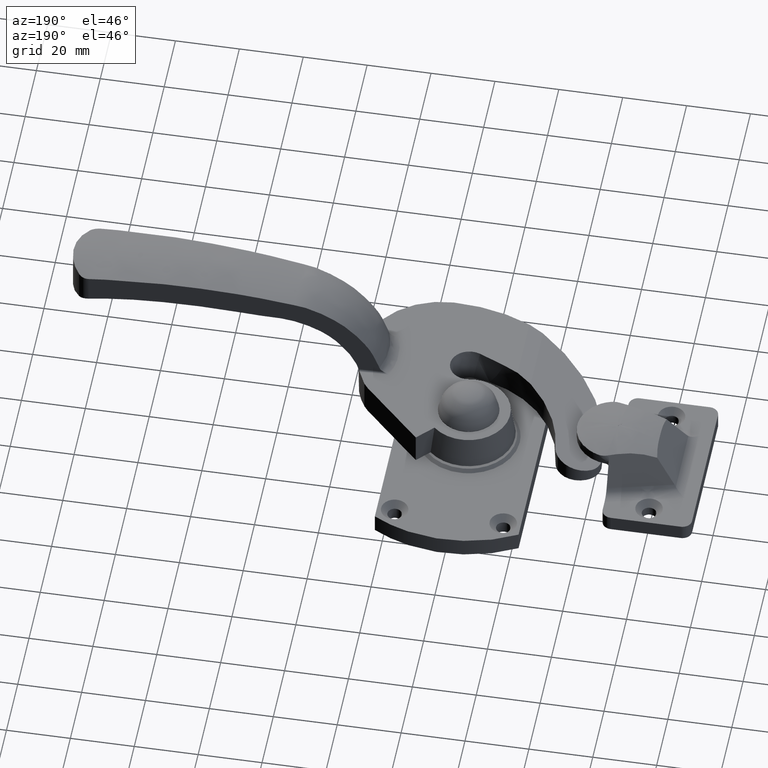
[diagram: clean part render]
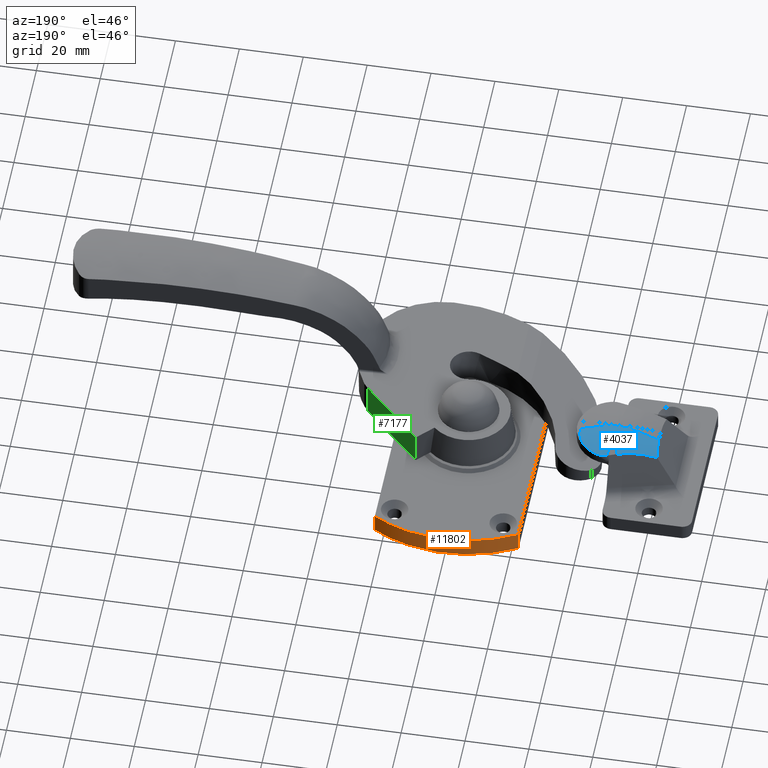
[diagram: same view with three faces highlighted in distinct colors, each labeled with its STEP entity id]
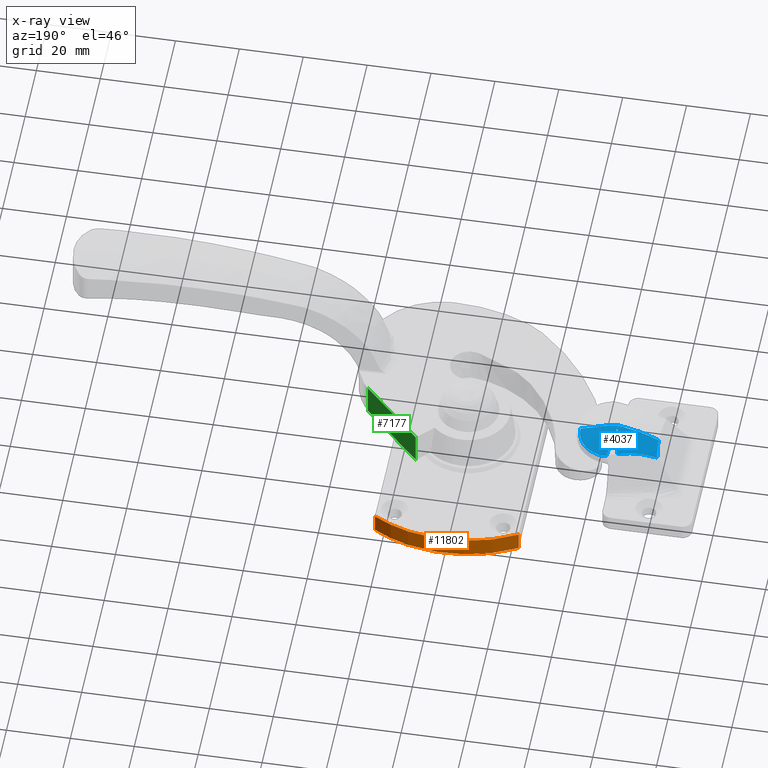
[diagram: x-ray of the same camera — body ghosted, the three highlighted faces saturated]
A machine part, auxiliary view with three faces highlighted in distinct colors.
The next image is the same camera in x-ray (body ghosted, the three faces saturated) — at least one of them is partly hidden behind the body in this view.
Their STEP definitions:

[orange] entity #11802 — the highlighted face is a freeform B-spline surface patch.
#11648=CARTESIAN_POINT('',(22.500000000000000,-38.971142999999998,0.0));
#11649=VERTEX_POINT('',#11648);
#11662=CARTESIAN_POINT('',(22.500000000000000,-38.971142999999998,6.0));
#11663=VERTEX_POINT('',#11662);
#11669=CARTESIAN_POINT('',(22.500000000000000,-38.971142999999998,6.0));
#11670=CARTESIAN_POINT('',(22.500000000000000,-38.971142999999998,0.0));
#11671=QUASI_UNIFORM_CURVE('',1,(#11669,#11670),.UNSPECIFIED.,.F.,.U.);
#11672=EDGE_CURVE('',#11663,#11649,#11671,.T.);
#11735=CARTESIAN_POINT('',(-22.500000000000000,-38.971142999999998,0.0));
#11736=VERTEX_POINT('',#11735);
#11742=CARTESIAN_POINT('',(-22.500000000000000,-38.971142999999998,6.0));
#11743=VERTEX_POINT('',#11742);
#11744=CARTESIAN_POINT('',(-22.500000000000000,-38.971142999999998,6.0));
#11745=CARTESIAN_POINT('',(-22.500000000000000,-38.971142999999998,0.0));
#11746=QUASI_UNIFORM_CURVE('',1,(#11744,#11745),.UNSPECIFIED.,.F.,.U.);
#11747=EDGE_CURVE('',#11743,#11736,#11746,.T.);
#11758=CARTESIAN_POINT('',(-24.178482303792428,-37.952615107330821,6.150000000000001));
#11759=CARTESIAN_POINT('',(-24.178482303792428,-37.952615107330821,-0.153750000000001));
#11760=CARTESIAN_POINT('',(0.166187748543544,-53.461880342083390,6.150000000000001));
#11761=CARTESIAN_POINT('',(0.166187748543544,-53.461880342083390,-0.153750000000000));
#11762=CARTESIAN_POINT('',(24.413966286184500,-37.801564123420150,6.150000000000001));
#11763=CARTESIAN_POINT('',(24.413966286184500,-37.801564123420150,-0.153750000000001));
#11771=(BOUNDED_SURFACE()B_SPLINE_SURFACE(1,2,((#11758,#11760,#11762),(#11759,#11761,#11763)),.UNSPECIFIED.,.F.,.F.,.U.)B_SPLINE_SURFACE_WITH_KNOTS((2,2),(3,3),(0.0,6.303750000000002),(0.0,52.768634472815151),.UNSPECIFIED.)GEOMETRIC_REPRESENTATION_ITEM()RATIONAL_B_SPLINE_SURFACE(((1.0,0.838184844521303,0.991624471848472),(1.0,0.838184844521303,0.991624471848472)))REPRESENTATION_ITEM('')SURFACE());
#11772=CARTESIAN_POINT('',(22.500000000000000,-38.971142999999998,0.0));
#11773=CARTESIAN_POINT('',(6.938894E-015,-51.961524283832887,0.0));
#11774=CARTESIAN_POINT('',(-22.500000000000000,-38.971142999999998,0.0));
#11782=(BOUNDED_CURVE()B_SPLINE_CURVE(2,(#11772,#11773,#11774),.UNSPECIFIED.,.F.,.U.)CURVE()GEOMETRIC_REPRESENTATION_ITEM()QUASI_UNIFORM_CURVE()RATIONAL_B_SPLINE_CURVE((1.0,0.866025402838329,1.0))REPRESENTATION_ITEM(''));
#11783=EDGE_CURVE('',#11649,#11736,#11782,.T.);
#11784=ORIENTED_EDGE('',*,*,#11783,.F.);
#11785=ORIENTED_EDGE('',*,*,#11672,.F.);
#11786=CARTESIAN_POINT('',(22.500000000000000,-38.971142999999998,6.0));
#11787=CARTESIAN_POINT('',(6.938894E-015,-51.961524283832887,6.0));
#11788=CARTESIAN_POINT('',(-22.500000000000000,-38.971142999999998,6.0));
#11796=(BOUNDED_CURVE()B_SPLINE_CURVE(2,(#11786,#11787,#11788),.UNSPECIFIED.,.F.,.U.)CURVE()GEOMETRIC_REPRESENTATION_ITEM()QUASI_UNIFORM_CURVE()RATIONAL_B_SPLINE_CURVE((1.0,0.866025402838329,1.0))REPRESENTATION_ITEM(''));
#11797=EDGE_CURVE('',#11663,#11743,#11796,.T.);
#11798=ORIENTED_EDGE('',*,*,#11797,.T.);
#11799=ORIENTED_EDGE('',*,*,#11747,.T.);
#11800=EDGE_LOOP('',(#11784,#11785,#11798,#11799));
#11801=FACE_OUTER_BOUND('',#11800,.T.);
#11802=ADVANCED_FACE('',(#11801),#11771,.T.);

[blue] entity #4037 — the highlighted face is a freeform B-spline surface patch.
#2849=CARTESIAN_POINT('',(42.572238804404812,-11.500019703721019,17.062767315540899));
#2850=VERTEX_POINT('',#2849);
#2865=CARTESIAN_POINT('',(45.200487418439501,-11.531460002798360,17.157146863765600));
#2866=VERTEX_POINT('',#2865);
#2880=CARTESIAN_POINT('',(42.572238804404812,-11.500019703721019,17.062767315540949));
#2881=CARTESIAN_POINT('',(42.786819425682758,-11.563978822565430,17.059285761545890));
#2882=CARTESIAN_POINT('',(43.003232123072003,-11.612816629655660,17.058400266112990));
#2883=CARTESIAN_POINT('',(43.439617257746242,-11.681081111228670,17.061934663274759));
#2884=CARTESIAN_POINT('',(43.659588397396433,-11.700518811339130,17.066349997178580));
#2885=CARTESIAN_POINT('',(43.992350632043518,-11.706461085450769,17.077452557324431));
#2886=CARTESIAN_POINT('',(44.103913347685413,-11.704543950695371,17.081912861784168));
#2887=CARTESIAN_POINT('',(44.327301403377248,-11.692488952471139,17.092459405666151));
#2888=CARTESIAN_POINT('',(44.438266589122591,-11.682409539801631,17.098502830989030));
#2889=CARTESIAN_POINT('',(44.768921929604772,-11.639760138004270,17.119102156235421));
#2890=CARTESIAN_POINT('',(44.986403542145837,-11.594949862713669,17.136081304117180));
#2891=CARTESIAN_POINT('',(45.200487418439501,-11.531460002798360,17.157146863765600));
#2892=B_SPLINE_CURVE_WITH_KNOTS('',3,(#2880,#2881,#2882,#2883,#2884,#2885,#2886,#2887,#2888,#2889,#2890,#2891),.UNSPECIFIED.,.F.,.U.,(4,2,2,2,2,4),(0.0,0.250000000000006,0.500000000000012,0.625000000000011,0.750000000000010,1.0),.UNSPECIFIED.);
#2893=EDGE_CURVE('',#2850,#2866,#2892,.T.);
#3057=CARTESIAN_POINT('',(39.465211184610403,-10.064617982728340,17.086945624534000));
#3058=VERTEX_POINT('',#3057);
#3087=CARTESIAN_POINT('',(35.244935301221453,-1.561378703921275,17.149811526779398));
#3088=VERTEX_POINT('',#3087);
#3089=CARTESIAN_POINT('',(35.244935301221453,-1.561378703921275,17.149811526779398));
#3090=CARTESIAN_POINT('',(35.241034906587537,-1.975689904835739,17.148529458557750));
#3091=CARTESIAN_POINT('',(35.260007336742113,-2.386405004900412,17.147256565133471));
#3092=CARTESIAN_POINT('',(35.343934718900627,-3.200605745782506,17.144724235593301));
#3093=CARTESIAN_POINT('',(35.408884484773331,-3.604092202792893,17.143465050506730));
#3094=CARTESIAN_POINT('',(35.541981898924092,-4.203713104088564,17.141511068520071));
#3095=CARTESIAN_POINT('',(35.592304129342033,-4.402650214086935,17.140848106897369));
#3096=CARTESIAN_POINT('',(35.676981340909641,-4.699610281988553,17.139819199138099));
#3097=CARTESIAN_POINT('',(35.706740215639933,-4.798355908305894,17.139470429593210));
#3098=CARTESIAN_POINT('',(35.769378089081442,-4.995356557219717,17.138757738045641));
#3099=CARTESIAN_POINT('',(35.802319154072237,-5.093780812770861,17.138393156219500));
#3100=CARTESIAN_POINT('',(35.973961592117242,-5.581831611748762,17.136533090750088));
#3101=CARTESIAN_POINT('',(36.133551657220622,-5.960039256124395,17.134926903788930));
#3102=CARTESIAN_POINT('',(36.496019046615373,-6.692681483982176,17.131201427618478));
#3103=CARTESIAN_POINT('',(36.698898364736081,-7.047114975056295,17.129082538289460));
#3104=CARTESIAN_POINT('',(37.035788604884743,-7.560875670797265,17.125251435425401));
#3105=CARTESIAN_POINT('',(37.153524588054502,-7.729141770286950,17.123864940301509));
#3106=CARTESIAN_POINT('',(37.338400392991353,-7.976997437148645,17.121580674483990));
#3107=CARTESIAN_POINT('',(37.401405017276133,-8.058858351340229,17.120785114142159));
#3108=CARTESIAN_POINT('',(37.530200768262759,-8.221049591408866,17.119118333402490));
#3109=CARTESIAN_POINT('',(37.595907460981387,-8.301265837426838,17.118248130505751));
#3110=CARTESIAN_POINT('',(37.929412216990897,-8.696152014902067,17.113717857010950));
#3111=CARTESIAN_POINT('',(38.213451258461838,-8.994034038335597,17.109503796573119));
#3112=CARTESIAN_POINT('',(38.814595804584428,-9.555205193775160,17.099508086651891));
#3113=CARTESIAN_POINT('',(39.131705822013323,-9.818489618731029,17.093727033724409));
#3114=CARTESIAN_POINT('',(39.465211184610347,-10.064617982728340,17.086945624534000));
#3115=B_SPLINE_CURVE_WITH_KNOTS('',3,(#3089,#3090,#3091,#3092,#3093,#3094,#3095,#3096,#3097,#3098,#3099,#3100,#3101,#3102,#3103,#3104,#3105,#3106,#3107,#3108,#3109,#3110,#3111,#3112,#3113,#3114),.UNSPECIFIED.,.F.,.U.,(4,2,2,2,2,2,2,2,2,2,2,2,4),(0.0,0.124999999999999,0.249999999999998,0.312499999999998,0.343749999999997,0.374999999999997,0.499999999999996,0.624999999999994,0.687499999999994,0.718749999999995,0.749999999999996,0.874999999999998,1.0),.UNSPECIFIED.);
#3116=EDGE_CURVE('',#3088,#3058,#3115,.T.);
#3425=CARTESIAN_POINT('',(39.465211184610403,-10.064617982728350,17.086945624533989));
#3426=CARTESIAN_POINT('',(39.942722151083508,-10.374657899622290,17.088423356793470));
#3427=CARTESIAN_POINT('',(40.442480100542717,-10.651087560963919,17.086926381465151));
#3428=CARTESIAN_POINT('',(41.095962487327057,-10.953134114412549,17.081663240345449));
#3429=CARTESIAN_POINT('',(41.228289868872963,-11.011425632389731,17.080438650061978));
#3430=CARTESIAN_POINT('',(41.493745797343017,-11.122696844479149,17.077683473329490));
#3431=CARTESIAN_POINT('',(41.627099434969310,-11.175788452393681,17.076151506292451));
#3432=CARTESIAN_POINT('',(42.029009931422287,-11.327544544713300,17.071122977710019));
#3433=CARTESIAN_POINT('',(42.299413981862173,-11.418699987407480,17.067193877199731));
#3434=CARTESIAN_POINT('',(42.572238804404812,-11.500019703721019,17.062767315540921));
#3435=B_SPLINE_CURVE_WITH_KNOTS('',3,(#3425,#3426,#3427,#3428,#3429,#3430,#3431,#3432,#3433,#3434),.UNSPECIFIED.,.F.,.U.,(4,2,2,2,4),(0.0,0.499999999999997,0.624999999999998,0.749999999999999,1.0),.UNSPECIFIED.);
#3436=EDGE_CURVE('',#3058,#2850,#3435,.T.);
#3587=CARTESIAN_POINT('',(45.242170051863198,-11.519112618072040,17.161217839734700));
#3588=VERTEX_POINT('',#3587);
#3589=CARTESIAN_POINT('',(48.236507741643997,-10.639789290348000,17.437213331778050));
#3590=VERTEX_POINT('',#3589);
#3604=CARTESIAN_POINT('',(48.236507741643997,-10.639789290348000,17.437213331778050));
#3605=CARTESIAN_POINT('',(48.116098870430307,-9.748801895497572,17.704726541706069));
#3606=CARTESIAN_POINT('',(47.994880653486128,-8.851833638227468,17.937457051265060));
#3607=CARTESIAN_POINT('',(47.750852354181447,-7.046160432079830,18.334658588469221));
#3608=CARTESIAN_POINT('',(47.628042888156628,-6.137455044987267,18.499127589207010));
#3609=CARTESIAN_POINT('',(47.380821470813970,-4.308331899933164,18.759936810473210));
#3610=CARTESIAN_POINT('',(47.256422454685243,-3.387912611772168,18.856278277967931));
#3611=CARTESIAN_POINT('',(47.099823084106241,-2.229969777486042,18.933485649653139));
#3612=CARTESIAN_POINT('',(47.068447271839290,-1.998009887917083,18.946763242341270));
#3613=CARTESIAN_POINT('',(47.005560746735704,-1.533345694011686,18.968962784141979));
#3614=CARTESIAN_POINT('',(46.974042269874637,-1.300535494109582,18.977886769801501));
#3615=CARTESIAN_POINT('',(46.910862282655941,-0.834917148660361,18.991328934543638));
#3616=CARTESIAN_POINT('',(46.879508645170830,-0.602026462247389,18.995851251480971));
#3617=CARTESIAN_POINT('',(46.838773969981297,-0.311062473594901,18.998755179518032));
#3618=CARTESIAN_POINT('',(46.830655282933037,-0.252860046226436,18.999198525532851));
#3619=CARTESIAN_POINT('',(46.819364486943371,-0.180277454591272,18.999580656541909));
#3620=CARTESIAN_POINT('',(46.817042512905083,-0.165768643566021,18.999648485315749));
#3621=CARTESIAN_POINT('',(46.813235549213957,-0.144068413986721,18.999737223471548));
#3622=CARTESIAN_POINT('',(46.811913665520237,-0.136845006328816,18.999764637732341));
#3623=CARTESIAN_POINT('',(46.809001164196552,-0.122449032531669,18.999815081152679));
#3624=CARTESIAN_POINT('',(46.807475613200310,-0.115242787954446,18.999838198677860));
#3625=CARTESIAN_POINT('',(46.804320001065577,-0.104675088564116,18.999869101520620));
#3626=CARTESIAN_POINT('',(46.803358472405932,-0.101025211395809,18.999879197595110));
#3627=CARTESIAN_POINT('',(46.800571086794562,-0.097330976079635,18.999888989332330));
#3628=CARTESIAN_POINT('',(46.799842088237682,-0.096573413471928,18.999890967117580));
#3629=CARTESIAN_POINT('',(46.797979774532308,-0.096408611852868,18.999891396899461));
#3630=CARTESIAN_POINT('',(46.797164070439941,-0.097104497634247,18.999889584021719));
#3631=CARTESIAN_POINT('',(46.795396103767480,-0.099262234147225,18.999883879194670));
#3632=CARTESIAN_POINT('',(46.794675199814890,-0.100987383450132,18.999879222766801));
#3633=CARTESIAN_POINT('',(46.791286543193657,-0.109582926178295,18.999855362727828));
#3634=CARTESIAN_POINT('',(46.789775167421773,-0.116813134488732,18.999833304667519));
#3635=CARTESIAN_POINT('',(46.785127098260539,-0.138422915326036,18.999760872717111));
#3636=CARTESIAN_POINT('',(46.782659285550537,-0.152941377510700,18.999703755165449));
#3637=CARTESIAN_POINT('',(46.770650170174207,-0.225577630797830,18.999374987103391));
#3638=CARTESIAN_POINT('',(46.762593371675628,-0.283941757063564,18.998973460653389));
#3639=CARTESIAN_POINT('',(46.746163506251712,-0.400591791346149,18.997894348780910));
#3640=CARTESIAN_POINT('',(46.738103917658663,-0.458937241247860,18.997216648779620));
#3641=CARTESIAN_POINT('',(46.697974796233368,-0.750681028197943,18.993137466961620));
#3642=CARTESIAN_POINT('',(46.666387365171133,-0.984084467644070,18.987664571710571));
#3643=CARTESIAN_POINT('',(46.603130028668652,-1.450715511521278,18.972302831865420));
#3644=CARTESIAN_POINT('',(46.571560275287588,-1.683963385519065,18.962413894582379));
#3645=CARTESIAN_POINT('',(46.476909825791132,-2.383487946510473,18.926119593077591));
#3646=CARTESIAN_POINT('',(46.413992594212417,-2.848839162604986,18.893123611573529));
#3647=CARTESIAN_POINT('',(46.225733288746923,-4.241364739686353,18.767932704514450));
#3648=CARTESIAN_POINT('',(46.100865809810941,-5.165251819797360,18.649559996379271));
#3649=CARTESIAN_POINT('',(45.914473299214421,-6.544380586757004,18.419631080698480));
#3650=CARTESIAN_POINT('',(45.852495271191252,-7.002972173476655,18.334250512997770));
#3651=CARTESIAN_POINT('',(45.728845190658276,-7.917904641026895,18.145901002679260));
#3652=CARTESIAN_POINT('',(45.667278762122542,-8.373464167984423,18.043086773117221));
#3653=CARTESIAN_POINT('',(45.544785732242971,-9.279856823394798,17.820430707544030));
#3654=CARTESIAN_POINT('',(45.483839084180033,-9.730838357286167,17.700558554859128));
#3655=CARTESIAN_POINT('',(45.392868922203043,-10.403986103710141,17.507925186279579));
#3656=CARTESIAN_POINT('',(45.362620525234398,-10.627814445244720,17.441575967432509));
#3657=CARTESIAN_POINT('',(45.302273973156552,-11.074360465350100,17.304592938651890));
#3658=CARTESIAN_POINT('',(45.272159046859727,-11.297202246940680,17.233917591026788));
#3659=CARTESIAN_POINT('',(45.242170051863127,-11.519112618072020,17.161217839734690));
#3660=B_SPLINE_CURVE_WITH_KNOTS('',3,(#3604,#3605,#3606,#3607,#3608,#3609,#3610,#3611,#3612,#3613,#3614,#3615,#3616,#3617,#3618,#3619,#3620,#3621,#3622,#3623,#3624,#3625,#3626,#3627,#3628,#3629,#3630,#3631,#3632,#3633,#3634,#3635,#3636,#3637,#3638,#3639,#3640,#3641,#3642,#3643,#3644,#3645,#3646,#3647,#3648,#3649,#3650,#3651,#3652,#3653,#3654,#3655,#3656,#3657,#3658,#3659),.UNSPECIFIED.,.F.,.U.,(4,2,2,2,2,2,2,2,2,2,2,2,2,2,2,2,2,2,2,2,2,2,2,2,2,2,2,4),(0.0,0.125000000000079,0.250000000000158,0.375000000000236,0.406250000000256,0.437500000000276,0.468750000000295,0.476562500000300,0.478515625000302,0.479492187500302,0.480468750000303,0.480957031250303,0.481079101562803,0.481201171875303,0.481445312500303,0.482421875000302,0.484375000000301,0.492187500000297,0.500000000000292,0.531250000000274,0.562500000000256,0.625000000000219,0.750000000000147,0.812500000000110,0.875000000000074,0.937500000000037,0.968750000000019,1.0),.UNSPECIFIED.);
#3661=EDGE_CURVE('',#3590,#3588,#3660,.T.);
#3747=CARTESIAN_POINT('',(59.866808347045591,-1.765998184913965,16.615400932515151));
#3748=VERTEX_POINT('',#3747);
#3749=CARTESIAN_POINT('',(35.244935301221453,-1.561378703921275,17.149811526779398));
#3750=CARTESIAN_POINT('',(36.241915560668559,-1.426656586571580,17.477521112138561));
#3751=CARTESIAN_POINT('',(37.246296111954017,-1.290935513361886,17.760752349893380));
#3752=CARTESIAN_POINT('',(39.269447272112117,-1.017554635580143,18.240728532646550));
#3753=CARTESIAN_POINT('',(40.288218679070390,-0.879893927229956,18.437468047080269));
#3754=CARTESIAN_POINT('',(42.340061180364863,-0.602661287319798,18.745016128597459));
#3755=CARTESIAN_POINT('',(43.373129492247010,-0.463070298697161,18.855825947433171));
#3756=CARTESIAN_POINT('',(44.933633890693983,-0.252363991787315,18.956637121690800));
#3757=CARTESIAN_POINT('',(45.455604879572277,-0.181785679612026,18.979325821360860));
#3758=CARTESIAN_POINT('',(46.110461521642293,-0.093899067378451,18.993829404248942));
#3759=CARTESIAN_POINT('',(46.241549758829549,-0.076317880560546,18.996036946119720));
#3760=CARTESIAN_POINT('',(46.438416493984967,-0.050371596489883,18.998303515309239));
#3761=CARTESIAN_POINT('',(46.504073205977903,-0.041759676007559,18.998884916020689));
#3762=CARTESIAN_POINT('',(46.602688631602753,-0.029479320028244,18.999495112451889));
#3763=CARTESIAN_POINT('',(46.635582285002172,-0.025479314819063,18.999654858807951));
#3764=CARTESIAN_POINT('',(46.701460730278953,-0.018326059785319,18.999886740784898));
#3765=CARTESIAN_POINT('',(46.734449207121742,-0.015079532118408,18.999958931446471));
#3766=CARTESIAN_POINT('',(46.800665910256583,-0.012326541088272,19.000014763674692));
#3767=CARTESIAN_POINT('',(46.833841265807841,-0.013385738445052,18.999998115744891));
#3768=CARTESIAN_POINT('',(46.899920232905480,-0.018536243013613,18.999876448534600));
#3769=CARTESIAN_POINT('',(46.932858613484477,-0.022213955807866,18.999771613342318));
#3770=CARTESIAN_POINT('',(47.031594468828423,-0.033767307140061,18.999325921647831));
#3771=CARTESIAN_POINT('',(47.097313961324559,-0.042339209325376,18.998853781895761));
#3772=CARTESIAN_POINT('',(47.294453201588922,-0.068091578326992,18.996912814488990));
#3773=CARTESIAN_POINT('',(47.425814003717733,-0.085705518525183,18.994919327731481));
#3774=CARTESIAN_POINT('',(48.082544698104407,-0.173743177118324,18.981455203427309));
#3775=CARTESIAN_POINT('',(48.607629135288683,-0.244772009869961,18.959491697460539));
#3776=CARTESIAN_POINT('',(49.656351059816203,-0.386369932708536,18.893226979093260));
#3777=CARTESIAN_POINT('',(50.180008888712329,-0.457108081943136,18.848923461007541));
#3778=CARTESIAN_POINT('',(51.224930673355999,-0.598270376312976,18.738059379936178));
#3779=CARTESIAN_POINT('',(51.746254542771780,-0.668705853026121,18.671490244315571));
#3780=CARTESIAN_POINT('',(52.525567485334122,-0.774001834118113,18.555062657229659));
#3781=CARTESIAN_POINT('',(52.784936217976387,-0.809046911467493,18.513486063478979));
#3782=CARTESIAN_POINT('',(53.302868502750812,-0.879029287749179,18.424792897498559));
#3783=CARTESIAN_POINT('',(53.561409626262140,-0.913963560845843,18.377677243036871));
#3784=CARTESIAN_POINT('',(54.850001293237248,-1.088080822513893,18.128656496032111));
#3785=CARTESIAN_POINT('',(55.869410771741613,-1.225830827771063,17.886219487429042));
#3786=CARTESIAN_POINT('',(57.381443081197268,-1.430149788137885,17.458159840626639));
#3787=CARTESIAN_POINT('',(57.882602987232481,-1.497871333002625,17.304724688947431));
#3788=CARTESIAN_POINT('',(58.630045870509207,-1.598873438066516,17.058370958004019));
#3789=CARTESIAN_POINT('',(58.878477092760612,-1.632444073150987,16.973551965504619));
#3790=CARTESIAN_POINT('',(59.373900321750213,-1.699390983380534,16.798487654768060));
#3791=CARTESIAN_POINT('',(59.621069536733060,-1.732791205001738,16.708172583170469));
#3792=CARTESIAN_POINT('',(59.866808347045612,-1.765998184913967,16.615400932515168));
#3793=B_SPLINE_CURVE_WITH_KNOTS('',3,(#3749,#3750,#3751,#3752,#3753,#3754,#3755,#3756,#3757,#3758,#3759,#3760,#3761,#3762,#3763,#3764,#3765,#3766,#3767,#3768,#3769,#3770,#3771,#3772,#3773,#3774,#3775,#3776,#3777,#3778,#3779,#3780,#3781,#3782,#3783,#3784,#3785,#3786,#3787,#3788,#3789,#3790,#3791,#3792),.UNSPECIFIED.,.F.,.U.,(4,2,2,2,2,2,2,2,2,2,2,2,2,2,2,2,2,2,2,2,2,4),(0.0,0.124999999999994,0.249999999999987,0.374999999999981,0.437499999999977,0.453124999999976,0.460937499999976,0.464843749999976,0.468749999999976,0.472656249999976,0.476562499999976,0.484374999999977,0.499999999999977,0.562499999999980,0.624999999999983,0.687499999999985,0.718749999999987,0.749999999999988,0.874999999999994,0.937499999999997,0.968749999999998,1.0),.UNSPECIFIED.);
#3794=EDGE_CURVE('',#3088,#3748,#3793,.T.);
#3804=CARTESIAN_POINT('',(65.608287495093222,-2.436081065569122,13.862334447312421));
#3805=CARTESIAN_POINT('',(64.279698761887488,-2.264745488189509,14.646679554631451));
#3806=CARTESIAN_POINT('',(62.921365060749672,-2.089213072041650,15.336939431667027));
#3807=CARTESIAN_POINT('',(60.149274691012963,-1.730691338590487,16.540591877475453));
#3808=CARTESIAN_POINT('',(58.732425163513930,-1.547251968348421,17.054263176132089));
#3809=CARTESIAN_POINT('',(55.881569515866055,-1.177975419357639,17.898681155218913));
#3810=CARTESIAN_POINT('',(54.442915645309256,-0.991492110250201,18.231604440035955));
#3811=CARTESIAN_POINT('',(51.544430895893768,-0.615722202616992,18.723837667064739));
#3812=CARTESIAN_POINT('',(50.087935414053376,-0.426737906745814,18.882499106836157));
#3813=CARTESIAN_POINT('',(48.262760445743524,-0.190309842300859,18.972832100172631));
#3814=CARTESIAN_POINT('',(47.897770282876223,-0.142981772294683,18.985491854179962));
#3815=CARTESIAN_POINT('',(47.439572423070032,-0.084058336484923,18.994563969700881));
#3816=CARTESIAN_POINT('',(47.347833196822485,-0.072285500483946,18.996040748259201));
#3817=CARTESIAN_POINT('',(47.163334467249157,-0.048873781727813,18.998318825221730));
#3818=CARTESIAN_POINT('',(47.071638667765889,-0.037069667832541,18.999121047819337));
#3819=CARTESIAN_POINT('',(46.950304185070223,-0.023288058476415,18.999697596738063));
#3820=CARTESIAN_POINT('',(46.925620400482451,-0.020576519591085,18.999791749723840));
#3821=CARTESIAN_POINT('',(46.873313620322619,-0.015690982625177,18.999934123324813));
#3822=CARTESIAN_POINT('',(46.844981792704608,-0.013318342472012,18.999984804411987));
#3823=CARTESIAN_POINT('',(46.781344808674952,-0.012109830876061,19.000009584939779));
#3824=CARTESIAN_POINT('',(46.749341748547181,-0.013844734927687,18.999976960887931));
#3825=CARTESIAN_POINT('',(46.695056229334057,-0.018203776684569,18.999864641927886));
#3826=CARTESIAN_POINT('',(46.670055125633056,-0.020832849729247,18.999784281449369));
#3827=CARTESIAN_POINT('',(46.547564598621825,-0.034257519098315,18.999277118304555));
#3828=CARTESIAN_POINT('',(46.456828442634574,-0.046030186010436,18.998533581305693));
#3829=CARTESIAN_POINT('',(45.998644376563007,-0.104033350566237,18.993164367299791));
#3830=CARTESIAN_POINT('',(45.638104011743081,-0.151054773831600,18.983559134617721));
#3831=CARTESIAN_POINT('',(44.915589413560944,-0.244587391040969,18.953815686718396));
#3832=CARTESIAN_POINT('',(44.555167017947873,-0.291300592860374,18.933677203265976));
#3833=CARTESIAN_POINT('',(42.756287764416598,-0.524481147100168,18.806794835830864));
#3834=CARTESIAN_POINT('',(41.327578360345314,-0.709793519006115,18.621744980953565));
#3835=CARTESIAN_POINT('',(38.490224045185499,-1.077604813508215,18.083999362815067));
#3836=CARTESIAN_POINT('',(37.081713842876169,-1.260154506711961,17.731353246247508));
#3837=CARTESIAN_POINT('',(34.286241759044593,-1.622193340301467,16.850947740948204));
#3838=CARTESIAN_POINT('',(32.899243136650924,-1.801731739697217,16.323291946175559));
#3839=CARTESIAN_POINT('',(31.524246055928526,-1.979446791205963,15.700062262230784));
#3840=CARTESIAN_POINT('',(65.572567741124558,-2.484122938600744,13.883313405327449));
#3841=CARTESIAN_POINT('',(64.245145807603507,-2.308848826956628,14.664955270710337));
#3842=CARTESIAN_POINT('',(62.888465289693222,-2.129531770304342,15.352631389123754));
#3843=CARTESIAN_POINT('',(60.120504537923857,-1.763535225085362,16.551520320502576));
#3844=CARTESIAN_POINT('',(58.706139010585382,-1.576422783496083,17.063028763398989));
#3845=CARTESIAN_POINT('',(55.860823117497986,-1.199918906340656,17.903767230035495));
#3846=CARTESIAN_POINT('',(54.425223260052483,-1.009889540842383,18.235181091783712));
#3847=CARTESIAN_POINT('',(51.533214865749848,-0.627061325771026,18.725142951681757));
#3848=CARTESIAN_POINT('',(50.080121011009169,-0.434589429831266,18.883055503762321));
#3849=CARTESIAN_POINT('',(48.259272172961808,-0.193809703319712,18.972961003181496));
#3850=CARTESIAN_POINT('',(47.895150481559689,-0.145610953631987,18.985560706333658));
#3851=CARTESIAN_POINT('',(47.438044391599860,-0.085603920636448,18.994589773010741));
#3852=CARTESIAN_POINT('',(47.346523842536826,-0.073614592801497,18.996059542388867));
#3853=CARTESIAN_POINT('',(47.162464994318022,-0.049772379482480,18.998326806105496));
#3854=CARTESIAN_POINT('',(47.070987858142999,-0.037751229192805,18.999125220463551));
#3855=CARTESIAN_POINT('',(46.949942743244719,-0.023716229840738,18.999699032342971));
#3856=CARTESIAN_POINT('',(46.925317827884385,-0.020954836506160,18.999792738378549));
#3857=CARTESIAN_POINT('',(46.873135797758302,-0.015979474181011,18.999934436049493));
#3858=CARTESIAN_POINT('',(46.844871541471555,-0.013563211000002,18.999984876544989));
#3859=CARTESIAN_POINT('',(46.781386332112447,-0.012332479861863,19.000009539436881));
#3860=CARTESIAN_POINT('',(46.749459599542291,-0.014099281575630,18.999977070234618));
#3861=CARTESIAN_POINT('',(46.695303550496952,-0.018538468374715,18.999865284550623));
#3862=CARTESIAN_POINT('',(46.670362073378143,-0.021215879481895,18.999785305535493));
#3863=CARTESIAN_POINT('',(46.548163674894312,-0.034887375242750,18.999280550051488));
#3864=CARTESIAN_POINT('',(46.457643898455167,-0.046876498728480,18.998540542740539));
#3865=CARTESIAN_POINT('',(46.000552222767716,-0.105946164477546,18.993196813811739));
#3866=CARTESIAN_POINT('',(45.640870686736505,-0.153832305692716,18.983637165143787));
#3867=CARTESIAN_POINT('',(44.920072785520958,-0.249086808048520,18.954034683956564));
#3868=CARTESIAN_POINT('',(44.560504315849400,-0.296660633713175,18.933991544487359));
#3869=CARTESIAN_POINT('',(42.765863563543085,-0.534139913191677,18.807707963685139));
#3870=CARTESIAN_POINT('',(41.340453770568864,-0.722885194013729,18.623527237177786));
#3871=CARTESIAN_POINT('',(38.509336694874094,-1.097640766800365,18.088245848971315));
#3872=CARTESIAN_POINT('',(37.103752209000049,-1.283684322639719,17.737184246189180));
#3873=CARTESIAN_POINT('',(34.313560597137432,-1.652862988600107,16.860572932724509));
#3874=CARTESIAN_POINT('',(32.928909320400209,-1.836026546777398,16.335110637901160));
#3875=CARTESIAN_POINT('',(31.555882267573285,-2.017518359303620,15.714329838066583));
#3876=CARTESIAN_POINT('',(58.625848081048396,-11.827228274319356,17.963267041584693));
#3877=CARTESIAN_POINT('',(57.595304895264299,-10.796695744310604,18.182182871136934));
#3878=CARTESIAN_POINT('',(56.615568612349321,-9.816972145887567,18.344567947661602));
#3879=CARTESIAN_POINT('',(54.723404075929530,-7.924842550281976,18.601627760938900));
#3880=CARTESIAN_POINT('',(53.809245197075846,-7.010705412073426,18.695985483076321));
#3881=CARTESIAN_POINT('',(52.039843448510204,-5.241373048954975,18.840497939839306));
#3882=CARTESIAN_POINT('',(51.181404159400088,-4.382975526230342,18.890944070449549));
#3883=CARTESIAN_POINT('',(49.490461163236539,-2.692233718225392,18.962871894099457));
#3884=CARTESIAN_POINT('',(48.659959083979352,-1.861497421660689,18.984173110108721));
#3885=CARTESIAN_POINT('',(47.626100673151235,-0.829084634243544,18.996358746582878));
#3886=CARTESIAN_POINT('',(47.419700477394400,-0.622763274263966,18.998056217562073));
#3887=CARTESIAN_POINT('',(47.160766352348489,-0.366067086092251,18.999272066082835));
#3888=CARTESIAN_POINT('',(47.108931921130711,-0.314788124597578,18.999469874812231));
#3889=CARTESIAN_POINT('',(47.004697629348307,-0.212824493980469,18.999774951247332));
#3890=CARTESIAN_POINT('',(46.952898610241078,-0.161420372366840,18.999882345742456));
#3891=CARTESIAN_POINT('',(46.884359723557353,-0.101407213657848,18.999959520472984));
#3892=CARTESIAN_POINT('',(46.870416601834712,-0.089599725710670,18.999972127906247));
#3893=CARTESIAN_POINT('',(46.840870291709905,-0.068325620892629,18.999991179242155));
#3894=CARTESIAN_POINT('',(46.824866715877810,-0.057994026507806,18.999997964905280));
#3895=CARTESIAN_POINT('',(46.788920659151024,-0.052731598439766,19.000001283044156));
#3896=CARTESIAN_POINT('',(46.770843386283026,-0.060286174003481,18.999996910938108));
#3897=CARTESIAN_POINT('',(46.740179463779057,-0.079267583050160,18.999981887117279));
#3898=CARTESIAN_POINT('',(46.726057167236910,-0.090715911208320,18.999971124047832));
#3899=CARTESIAN_POINT('',(46.656865689321904,-0.149174378159014,18.999903238382711));
#3900=CARTESIAN_POINT('',(46.605609335373785,-0.200440956708853,18.999803703443526));
#3901=CARTESIAN_POINT('',(46.346758361919548,-0.453053765458511,18.999084700161202));
#3902=CARTESIAN_POINT('',(46.142988941281786,-0.657920951225800,18.997798767657496));
#3903=CARTESIAN_POINT('',(45.734078507276600,-1.066005685483036,18.993796052522192));
#3904=CARTESIAN_POINT('',(45.529813914972387,-1.270100592692649,18.991079226101746));
#3905=CARTESIAN_POINT('',(44.507920161549293,-2.291290097326717,18.973826778660996));
#3906=CARTESIAN_POINT('',(43.688672222486353,-3.110546036325161,18.948575284508273));
#3907=CARTESIAN_POINT('',(42.020566271487944,-4.778492607921368,18.868377752787111));
#3908=CARTESIAN_POINT('',(41.171888762452319,-5.627132640615407,18.813548250332463));
#3909=CARTESIAN_POINT('',(39.416855057783692,-7.382105416129546,18.658606498710924));
#3910=CARTESIAN_POINT('',(38.510483215668650,-8.288457420927191,18.558750246194450));
#3911=CARTESIAN_POINT('',(37.558160239724501,-9.240764211989099,18.421289733165366));
#3912=CARTESIAN_POINT('',(49.287023065212018,-18.770924202637826,13.885026608631252));
#3913=CARTESIAN_POINT('',(49.111403877820756,-17.443624361697641,14.666433468962067));
#3914=CARTESIAN_POINT('',(48.931754656355736,-16.087111596390084,15.353885130045905));
#3915=CARTESIAN_POINT('',(48.565099898797200,-13.319575019205578,16.552360187138756));
#3916=CARTESIAN_POINT('',(48.377662991434185,-11.905465547999377,17.063680738987880));
#3917=CARTESIAN_POINT('',(48.000514532018734,-9.060757118187469,17.904099595700036));
#3918=CARTESIAN_POINT('',(47.810167129390187,-7.625498147446775,18.235382358564411));
#3919=CARTESIAN_POINT('',(47.426678273903555,-4.734411235124012,18.725146955131155));
#3920=CARTESIAN_POINT('',(47.233958116786432,-3.281201110949710,18.882994472235978));
#3921=CARTESIAN_POINT('',(46.992461548685178,-1.463282941941427,18.972862846411118));
#3922=CARTESIAN_POINT('',(46.944168660454039,-1.099376347128022,18.985457338112397));
#3923=CARTESIAN_POINT('',(46.883543235790768,-0.646317316952127,18.994482662397619));
#3924=CARTESIAN_POINT('',(46.871404979238697,-0.555796702514093,18.995951827130497));
#3925=CARTESIAN_POINT('',(46.846993471876658,-0.375785733328387,18.998218145349671));
#3926=CARTESIAN_POINT('',(46.834860957943278,-0.285024999496849,18.999016279273384));
#3927=CARTESIAN_POINT('',(46.818806871847357,-0.179059551138219,18.999589794666804));
#3928=CARTESIAN_POINT('',(46.815540895325547,-0.158210794941408,18.999683515241777));
#3929=CARTESIAN_POINT('',(46.808620047515120,-0.120646384016440,18.999825071029182));
#3930=CARTESIAN_POINT('',(46.804871388730497,-0.102403392096229,18.999875583300167));
#3931=CARTESIAN_POINT('',(46.796451411738445,-0.093111267211353,18.999900133823488));
#3932=CARTESIAN_POINT('',(46.792217002482190,-0.106450769903874,18.999867663517946));
#3933=CARTESIAN_POINT('',(46.785034342460854,-0.139967008954989,18.999756055396610));
#3934=CARTESIAN_POINT('',(46.781726380592659,-0.160181691312942,18.999676027326583));
#3935=CARTESIAN_POINT('',(46.765519335274753,-0.263402652863079,18.999171563706465));
#3936=CARTESIAN_POINT('',(46.753513794183114,-0.353921574035215,18.998431792943457));
#3937=CARTESIAN_POINT('',(46.692890210011370,-0.799902697747082,18.993090295885448));
#3938=CARTESIAN_POINT('',(46.645186055601052,-1.161447573726702,18.983534590417669));
#3939=CARTESIAN_POINT('',(46.549588488893619,-1.880637473370768,18.953944351622834));
#3940=CARTESIAN_POINT('',(46.501900117320453,-2.239831697193764,18.933909491515848));
#3941=CARTESIAN_POINT('',(46.263882253459116,-4.032858507222693,18.807677911074016));
#3942=CARTESIAN_POINT('',(46.074840469255882,-5.457994014603297,18.623572663270245));
#3943=CARTESIAN_POINT('',(45.699443945630399,-8.288284262411425,18.088505292443926));
#3944=CARTESIAN_POINT('',(45.513087885182834,-9.693546609744573,17.737581313994426));
#3945=CARTESIAN_POINT('',(45.143274202582340,-12.483168265256317,16.861299581784035));
#3946=CARTESIAN_POINT('',(44.959790725445671,-13.867579147099375,16.336027668625370));
#3947=CARTESIAN_POINT('',(44.777966744320459,-15.240404233576786,15.715459814253094));
#3948=CARTESIAN_POINT('',(49.243149399244366,-18.803545586508243,13.865867093575789));
#3949=CARTESIAN_POINT('',(49.071127680014278,-17.475179776034654,14.649742913748270));
#3950=CARTESIAN_POINT('',(48.894935242372284,-16.117156943854752,15.339554331644791));
#3951=CARTESIAN_POINT('',(48.535107468999847,-13.345848670229595,16.542379758748837));
#3952=CARTESIAN_POINT('',(48.351025167152713,-11.929470663905629,17.055675512278491));
#3953=CARTESIAN_POINT('',(47.980477258475176,-9.079703345381416,17.899454549417563));
#3954=CARTESIAN_POINT('',(47.793368315135744,-7.641655580087948,18.232115706195493));
#3955=CARTESIAN_POINT('',(47.416325803143984,-4.744655327726404,18.723954465120595));
#3956=CARTESIAN_POINT('',(47.226789527187250,-3.288338043767535,18.882485841352992));
#3957=CARTESIAN_POINT('',(46.989272313717116,-1.466474991392725,18.972744586752672));
#3958=CARTESIAN_POINT('',(46.941774802037273,-1.101775648658197,18.985393914525307));
#3959=CARTESIAN_POINT('',(46.882147505205744,-0.647728288098894,18.994458549267055));
#3960=CARTESIAN_POINT('',(46.870209082441242,-0.557010128596159,18.995934114521042));
#3961=CARTESIAN_POINT('',(46.846199441083847,-0.376606233207080,18.998210306927142));
#3962=CARTESIAN_POINT('',(46.834266639132778,-0.285647347989400,18.999011918634363));
#3963=CARTESIAN_POINT('',(46.818476811093149,-0.179450533199350,18.999587933085259));
#3964=CARTESIAN_POINT('',(46.815264593995117,-0.158556254360838,18.999682062065716));
#3965=CARTESIAN_POINT('',(46.808457665960638,-0.120909821613887,18.999824234666224));
#3966=CARTESIAN_POINT('',(46.804770711212754,-0.102626995574066,18.999874967102368));
#3967=CARTESIAN_POINT('',(46.796489329484167,-0.093314581023033,18.999899624531707));
#3968=CARTESIAN_POINT('',(46.792324619745862,-0.106683211033299,18.999867012750506));
#3969=CARTESIAN_POINT('',(46.785260188753533,-0.140272633241826,18.999754918323934));
#3970=CARTESIAN_POINT('',(46.782006677232687,-0.160531454199626,18.999674541503179));
#3971=CARTESIAN_POINT('',(46.766066406828962,-0.263977792695960,18.999167879721465));
#3972=CARTESIAN_POINT('',(46.754258486254514,-0.354694341805407,18.998424885437899));
#3973=CARTESIAN_POINT('',(46.694632841254425,-0.801648939213601,18.993060116529726));
#3974=CARTESIAN_POINT('',(46.647714082776417,-1.163982293558636,18.983462785489547));
#3975=CARTESIAN_POINT('',(46.553692061784488,-1.884736627269756,18.953743821447667));
#3976=CARTESIAN_POINT('',(46.506790235770353,-2.244709968229924,18.933621896883604));
#3977=CARTESIAN_POINT('',(46.272700541518915,-4.041604511470226,18.806843525991347));
#3978=CARTESIAN_POINT('',(46.086793583038173,-5.469753165627304,18.621944616582201));
#3979=CARTESIAN_POINT('',(45.717739156378400,-8.305738601394133,18.084626954460898));
#3980=CARTESIAN_POINT('',(45.534573902551394,-9.713672625321898,17.732256000957978));
#3981=CARTESIAN_POINT('',(45.171280899072976,-12.508116477285995,16.852509336422990));
#3982=CARTESIAN_POINT('',(44.991108299027935,-13.894671134094729,16.325234218666495));
#3983=CARTESIAN_POINT('',(44.812733748442696,-15.269295521623031,15.702429880572051));
#3991=(BOUNDED_SURFACE()B_SPLINE_SURFACE(3,2,((#3804,#3840,#3876,#3912,#3948),(#3805,#3841,#3877,#3913,#3949),(#3806,#3842,#3878,#3914,#3950),(#3807,#3843,#3879,#3915,#3951),(#3808,#3844,#3880,#3916,#3952),(#3809,#3845,#3881,#3917,#3953),(#3810,#3846,#3882,#3918,#3954),(#3811,#3847,#3883,#3919,#3955),(#3812,#3848,#3884,#3920,#3956),(#3813,#3849,#3885,#3921,#3957),(#3814,#3850,#3886,#3922,#3958),(#3815,#3851,#3887,#3923,#3959),(#3816,#3852,#3888,#3924,#3960),(#3817,#3853,#3889,#3925,#3961),(#3818,#3854,#3890,#3926,#3962),(#3819,#3855,#3891,#3927,#3963),(#3820,#3856,#3892,#3928,#3964),(#3821,#3857,#3893,#3929,#3965),(#3822,#3858,#3894,#3930,#3966),(#3823,#3859,#3895,#3931,#3967),(#3824,#3860,#3896,#3932,#3968),(#3825,#3861,#3897,#3933,#3969),(#3826,#3862,#3898,#3934,#3970),(#3827,#3863,#3899,#3935,#3971),(#3828,#3864,#3900,#3936,#3972),(#3829,#3865,#3901,#3937,#3973),(#3830,#3866,#3902,#3938,#3974),(#3831,#3867,#3903,#3939,#3975),(#3832,#3868,#3904,#3940,#3976),(#3833,#3869,#3905,#3941,#3977),(#3834,#3870,#3906,#3942,#3978),(#3835,#3871,#3907,#3943,#3979),(#3836,#3872,#3908,#3944,#3980),(#3837,#3873,#3909,#3945,#3981),(#3838,#3874,#3910,#3946,#3982),(#3839,#3875,#3911,#3947,#3983)),.UNSPECIFIED.,.F.,.F.,.U.)B_SPLINE_SURFACE_WITH_KNOTS((4,2,2,2,2,2,2,2,2,2,2,2,2,2,2,2,2,4),(3,1,1,3),(0.0,5.998243956933516,11.996487913867080,17.994731870800649,23.992975827734170,25.492536816967551,25.867427064275930,26.242317311584259,26.336039873411352,26.429762435238430,26.523484997065509,26.617207558892591,26.992097806200920,28.491658795434301,29.991219784667681,35.989463741601199,41.987707698534713,47.985951655468277),(0.0,0.131366578515832,23.836129725204358,23.956088573824111),.UNSPECIFIED.)GEOMETRIC_REPRESENTATION_ITEM()RATIONAL_B_SPLINE_SURFACE(((1.000735047587071,1.000367523793535,0.933681271332822,1.000335608429564,1.000671216859127),(1.000627299216675,1.000313649608338,0.943402730278165,1.000286412619643,1.000572825239285),(1.000530336602012,1.000265168301006,0.952151058203916,1.000242141375976,1.000484282751953),(1.000359288300785,1.000179644150392,0.967583672469440,1.000164044048995,1.000328088097990),(1.000285138178235,1.000142569089118,0.974273772463678,1.000130188545462,1.000260377090924),(1.000162403273525,1.000081201636763,0.985347372304820,1.000074150175502,1.000148300351005),(1.000113495601305,1.000056747800652,0.989760004494646,1.000051819883755,1.000103639767509),(1.000040966606702,1.000020483303351,0.996303840292706,1.000018704555707,1.000037409111414),(1.000017433231594,1.000008716615797,0.998427108970594,1.000007959674422,1.000015919348843),(1.000004039544581,1.000002019772291,0.999635537255399,1.000001844377475,1.000003688754951),(1.000002161635824,1.000001080817912,0.999804969171740,1.000000986960868,1.000001973921735),(1.000000815861641,1.000000407930821,0.999926389926636,1.000000372506555,1.000000745013109),(1.000000596784271,1.000000298392135,0.999946155902268,1.000000272480089,1.000000544960178),(1.000000258831538,1.000000129415769,0.999976647255464,1.000000118177445,1.000000236354890),(1.000000139814488,1.000000069907244,0.999987385416590,1.000000063836576,1.000000127673151),(1.000000054285048,1.000000027142524,0.999995102200961,1.000000024785497,1.000000049570994),(1.000000040313043,1.000000020156521,0.999996362807285,1.000000018406151,1.000000036812302),(1.000000019197250,1.000000009598625,0.999998267952652,1.000000008765091,1.000000017530182),(1.000000011672754,1.000000005836377,0.999998946840735,1.000000005329552,1.000000010659105),(1.000000008001679,1.000000004000839,0.999999278058779,1.000000003653411,1.000000007306822),(1.000000012843983,1.000000006421992,0.999998841168014,1.000000005864313,1.000000011728626),(1.000000029497174,1.000000014748587,0.999997338655196,1.000000013467836,1.000000026935672),(1.000000041425291,1.000000020712646,0.999996262456052,1.000000018913982,1.000000037827965),(1.000000116659284,1.000000058329642,0.999989474565313,1.000000053264360,1.000000106528719),(1.000000226971830,1.000000113485915,0.999979521756898,1.000000103630922,1.000000207261844),(1.000001023497617,1.000000511748808,0.999907656236204,1.000000467309102,1.000000934618204),(1.000002448473113,1.000001224236556,0.999779089644172,1.000001117925194,1.000002235850388),(1.000006859300167,1.000003429650084,0.999381128413163,1.000003131823024,1.000006263646048),(1.000009845204515,1.000004922602257,0.999111729011332,1.000004495128865,1.000008990257730),(1.000028646831903,1.000014323415951,0.997415376221155,1.000013079586187,1.000026159172375),(1.000056060341559,1.000028030170779,0.994942027365002,1.000025596061428,1.000051192122857),(1.000135163954831,1.000067581977416,0.987805005004145,1.000061713232466,1.000123426464932),(1.000186856270876,1.000093428135438,0.983141131885958,1.000085314938415,1.000170629876829),(1.000314487917483,1.000157243958742,0.971625729768342,1.000143589065470,1.000287178130940),(1.000390434529243,1.000195217264621,0.964773543832255,1.000178264811029,1.000356529622059),(1.000478666066563,1.000239333033282,0.956812966195705,1.000218549614624,1.000437099229248)))REPRESENTATION_ITEM('')SURFACE());
#3992=ORIENTED_EDGE('',*,*,#3436,.T.);
#3993=ORIENTED_EDGE('',*,*,#2893,.T.);
#3994=CARTESIAN_POINT('',(45.242170051863198,-11.519112618072040,17.161217839734700));
#3995=CARTESIAN_POINT('',(45.228273275833317,-11.523224426389239,17.159870775870591));
#3996=CARTESIAN_POINT('',(45.214379064991128,-11.527340221762801,17.158513782723340));
#3997=CARTESIAN_POINT('',(45.200487418439501,-11.531460002798340,17.157146863765579));
#3998=QUASI_UNIFORM_CURVE('',3,(#3994,#3995,#3996,#3997),.UNSPECIFIED.,.F.,.U.);
#3999=EDGE_CURVE('',#3588,#2866,#3998,.T.);
#4000=ORIENTED_EDGE('',*,*,#3999,.F.);
#4001=ORIENTED_EDGE('',*,*,#3661,.F.);
#4002=CARTESIAN_POINT('',(60.485384142495398,-8.364386773615280,15.731983163269049));
#4003=VERTEX_POINT('',#4002);
#4004=CARTESIAN_POINT('',(60.485384142495398,-8.364386773615280,15.731983163269049));
#4005=CARTESIAN_POINT('',(59.498074168961530,-8.444267643092701,16.091443878919961));
#4006=CARTESIAN_POINT('',(58.493642266287452,-8.551694836706933,16.401035854824570));
#4007=CARTESIAN_POINT('',(57.215636598187110,-8.722122532018155,16.722592741000351));
#4008=CARTESIAN_POINT('',(56.958678794631872,-8.758055201891953,16.783672262816740));
#4009=CARTESIAN_POINT('',(56.443475220651429,-8.833467614660776,16.898916979453560));
#4010=CARTESIAN_POINT('',(56.185973968660960,-8.872835260822074,16.952922322464850));
#4011=CARTESIAN_POINT('',(55.413769561306459,-8.995885229696434,17.104168484967261));
#4012=CARTESIAN_POINT('',(54.899365496278953,-9.084510314464442,17.190648730249841));
#4013=CARTESIAN_POINT('',(53.357341361335997,-9.370019431378200,17.407345827366100));
#4014=CARTESIAN_POINT('',(52.330905124260440,-9.586467465849918,17.494971128867309));
#4015=CARTESIAN_POINT('',(50.281246710542810,-10.072479045426210,17.554587317864840));
#4016=CARTESIAN_POINT('',(49.258023513463613,-10.342025726803239,17.526614918314351));
#4017=CARTESIAN_POINT('',(48.236507741643997,-10.639789290347981,17.437213331778050));
#4018=B_SPLINE_CURVE_WITH_KNOTS('',3,(#4004,#4005,#4006,#4007,#4008,#4009,#4010,#4011,#4012,#4013,#4014,#4015,#4016,#4017),.UNSPECIFIED.,.F.,.U.,(4,2,2,2,2,2,4),(0.0,0.250000000000004,0.312500000000004,0.375000000000004,0.500000000000004,0.750000000000002,1.0),.UNSPECIFIED.);
#4019=EDGE_CURVE('',#4003,#3590,#4018,.T.);
#4020=ORIENTED_EDGE('',*,*,#4019,.F.);
#4021=CARTESIAN_POINT('',(60.485384142495398,-8.364386773615280,15.731983163269049));
#4022=CARTESIAN_POINT('',(60.383594197982127,-7.828900089579798,15.877354266325080));
#4023=CARTESIAN_POINT('',(60.205143825247212,-6.750734762839595,16.132207804669310));
#4024=CARTESIAN_POINT('',(60.076363389509901,-5.658354115359309,16.316125323104071));
#4025=CARTESIAN_POINT('',(59.972628854266809,-4.558805439685916,16.464273589482161));
#4026=CARTESIAN_POINT('',(59.933282797195339,-4.005447585646405,16.520465581187619));
#4027=CARTESIAN_POINT('',(59.880374539570113,-2.891352649558047,16.596026402141771));
#4028=CARTESIAN_POINT('',(59.866808347045691,-2.330616709993914,16.615400932515151));
#4029=CARTESIAN_POINT('',(59.866808347045698,-1.765998184913990,16.615400932515151));
#4030=B_SPLINE_CURVE_WITH_KNOTS('',3,(#4021,#4022,#4023,#4024,#4025,#4026,#4027,#4028,#4029),.UNSPECIFIED.,.F.,.U.,(4,1,2,2,4),(0.0,0.250000000000000,0.500000000000000,0.750000000000000,1.0),.UNSPECIFIED.);
#4031=EDGE_CURVE('',#4003,#3748,#4030,.T.);
#4032=ORIENTED_EDGE('',*,*,#4031,.T.);
#4033=ORIENTED_EDGE('',*,*,#3794,.F.);
#4034=ORIENTED_EDGE('',*,*,#3116,.T.);
#4035=EDGE_LOOP('',(#3992,#3993,#4000,#4001,#4020,#4032,#4033,#4034));
#4036=FACE_OUTER_BOUND('',#4035,.T.);
#4037=ADVANCED_FACE('',(#4036),#3991,.T.);

[green] entity #7177 — the highlighted face is a freeform B-spline surface patch.
#5807=CARTESIAN_POINT('',(-32.216863625954502,3.716864588681765,7.600000000000000));
#5808=VERTEX_POINT('',#5807);
#5824=CARTESIAN_POINT('',(-32.216863625954502,3.716864588681765,17.600000000000001));
#5825=VERTEX_POINT('',#5824);
#5826=CARTESIAN_POINT('',(-32.216863625954502,3.716864588681765,17.600000000000001));
#5827=CARTESIAN_POINT('',(-32.216863625954502,3.716864588681765,7.600000000000000));
#5828=QUASI_UNIFORM_CURVE('',1,(#5826,#5827),.UNSPECIFIED.,.F.,.U.);
#5829=EDGE_CURVE('',#5825,#5808,#5828,.T.);
#7135=CARTESIAN_POINT('',(-14.0,-14.500000000000000,17.600000000000001));
#7136=VERTEX_POINT('',#7135);
#7142=CARTESIAN_POINT('',(-14.0,-14.500000000000000,7.600000000000000));
#7143=VERTEX_POINT('',#7142);
#7144=CARTESIAN_POINT('',(-14.0,-14.500000000000000,7.600000000000000));
#7145=CARTESIAN_POINT('',(-14.0,-14.500000000000000,17.600000000000001));
#7146=QUASI_UNIFORM_CURVE('',1,(#7144,#7145),.UNSPECIFIED.,.F.,.U.);
#7147=EDGE_CURVE('',#7143,#7136,#7146,.T.);
#7158=CARTESIAN_POINT('',(-33.126794902721812,4.626795913537276,7.100499925509095));
#7159=CARTESIAN_POINT('',(-13.090067257389659,-15.409932790698701,7.100499925509095));
#7160=CARTESIAN_POINT('',(-33.126794902721812,4.626795913537276,18.099500253304839));
#7161=CARTESIAN_POINT('',(-13.090067257389659,-15.409932790698701,18.099500253304839));
#7162=B_SPLINE_SURFACE_WITH_KNOTS('',1,1,((#7158,#7160),(#7159,#7161)),.UNSPECIFIED.,.F.,.F.,.U.,(2,2),(2,2),(0.0,28.336212730362739),(0.0,10.999000327795750),.UNSPECIFIED.);
#7163=CARTESIAN_POINT('',(-32.216863625954502,3.716864588681765,17.600000000000001));
#7164=CARTESIAN_POINT('',(-14.0,-14.500000000000000,17.600000000000001));
#7165=QUASI_UNIFORM_CURVE('',1,(#7163,#7164),.UNSPECIFIED.,.F.,.U.);
#7166=EDGE_CURVE('',#5825,#7136,#7165,.T.);
#7167=ORIENTED_EDGE('',*,*,#7166,.F.);
#7168=ORIENTED_EDGE('',*,*,#5829,.T.);
#7169=CARTESIAN_POINT('',(-32.216863625954502,3.716864588681765,7.600000000000000));
#7170=CARTESIAN_POINT('',(-14.0,-14.500000000000000,7.600000000000000));
#7171=QUASI_UNIFORM_CURVE('',1,(#7169,#7170),.UNSPECIFIED.,.F.,.U.);
#7172=EDGE_CURVE('',#5808,#7143,#7171,.T.);
#7173=ORIENTED_EDGE('',*,*,#7172,.T.);
#7174=ORIENTED_EDGE('',*,*,#7147,.T.);
#7175=EDGE_LOOP('',(#7167,#7168,#7173,#7174));
#7176=FACE_OUTER_BOUND('',#7175,.T.);
#7177=ADVANCED_FACE('',(#7176),#7162,.T.);